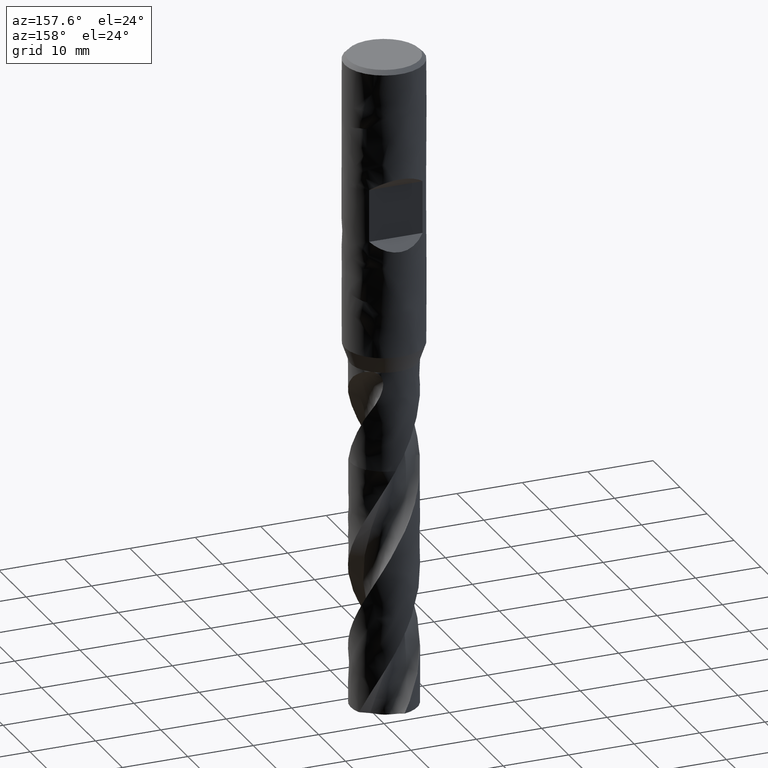
[diagram: clean part render]
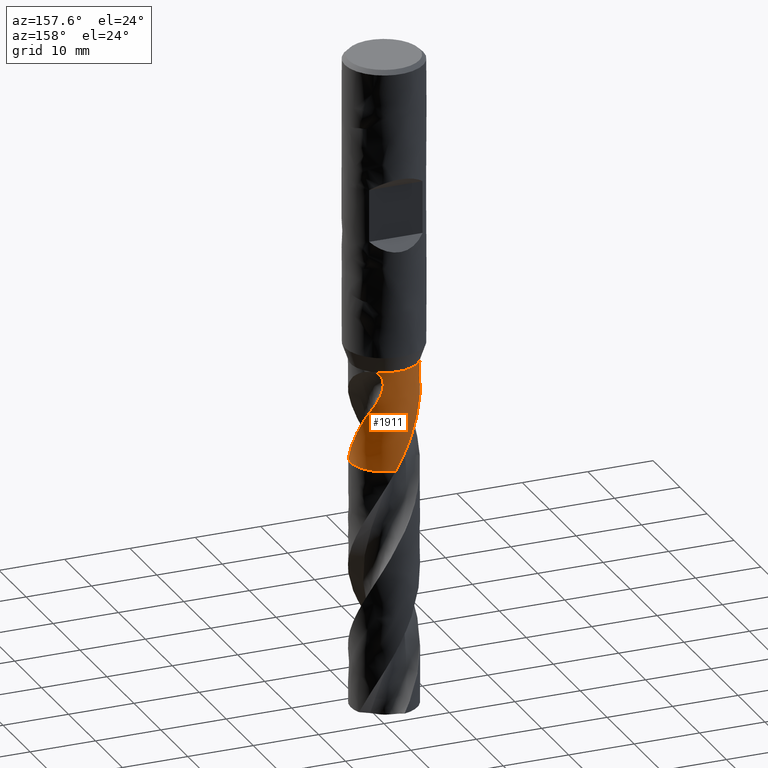
[diagram: same view with one face highlighted and labeled with its STEP entity id]
A machine part, auxiliary view. The second image highlights one B-rep face of the part: STEP entity #1911.
In plain terms, the highlighted face is a freeform B-spline surface patch.
Its self-contained STEP definition (entity closure, byte-faithful):
#119 = VERTEX_POINT('', #120);
#120 = CARTESIAN_POINT('', (3.22291237265761, 3.95257331850663, -47.));
#130 = EDGE_CURVE('', #131, #119, #133, .T.);
#131 = VERTEX_POINT('', #132);
#132 = CARTESIAN_POINT('', (-5.1, 3.19020491177885E-15, -47.));
#133 = CIRCLE('', #134, 5.1);
#134 = AXIS2_PLACEMENT_3D('', #135, #136, #137);
#135 = CARTESIAN_POINT('', (1.76221774462768E-31, 2.87791997799628E-15, -47.));
#136 = DIRECTION('', (3.74939945665464E-33, 6.12323399573677E-17, -1.));
#137 = DIRECTION('', (-1., 6.12323399573677E-17, 0.));
#720 = VERTEX_POINT('', #721);
#721 = CARTESIAN_POINT('', (4.93343042311955, -1.29277386276117, -62.3));
#791 = EDGE_CURVE('', #792, #720, #794, .T.);
#792 = VERTEX_POINT('', #793);
#793 = CARTESIAN_POINT('', (4.80703919696634, 1.70363557101546, -56.9525544792439));
#794 = B_SPLINE_CURVE_WITH_KNOTS('', 3, (#795, #796, #797, #798, #799, #800, #801, #802, #803, #804, #805, #806, #807, #808, #809, #810, #811, #812, #813, #814, #815, #816, #817, #818, #819, #820, #821, #822, #823, #824, #825, #826, #827, #828, #829, #830, #831, #832, #833, #834, #835, #836, #837, #838, #839, #840), .UNSPECIFIED., .F., .U., (4, 3, 3, 3, 3, 3, 3, 3, 3, 3, 3, 3, 3, 3, 3, 4), (0., 0.443139066501007, 0.886179293454697, 1.55039542453662, 1.99338693808374, 2.43634347516564, 2.73172156693805, 3.1746136386526, 3.46998339028006, 3.52836089720541, 3.58675071230853, 3.88254870842186, 4.54861569330321, 4.99239656060442, 5.9918421056947, 6.15313403050177), .UNSPECIFIED.);
#795 = CARTESIAN_POINT('', (4.80703919696634, 1.70363557101547, -56.9525544792439));
#796 = CARTESIAN_POINT('', (4.83058853404751, 1.63718791734018, -57.0823592363285));
#797 = CARTESIAN_POINT('', (4.85289231540216, 1.56987225002651, -57.21195445983));
#798 = CARTESIAN_POINT('', (4.87384573476975, 1.50187474633119, -57.341401092176));
#799 = CARTESIAN_POINT('', (4.8947944806011, 1.43389240907682, -57.4708188522165));
#800 = CARTESIAN_POINT('', (4.91439199590878, 1.36523952804474, -57.6001121577976));
#801 = CARTESIAN_POINT('', (4.93258852187919, 1.29598243577069, -57.7292699928549));
#802 = CARTESIAN_POINT('', (4.95986917348571, 1.19215060497609, -57.9229063993966));
#803 = CARTESIAN_POINT('', (4.98400968154557, 1.086932001913, -58.1162738297743));
#804 = CARTESIAN_POINT('', (5.00486953051123, 0.980449377867282, -58.3092677634978));
#805 = CARTESIAN_POINT('', (5.01878177327867, 0.909431983701248, -58.4379829072663));
#806 = CARTESIAN_POINT('', (5.03123818085599, 0.837829027628456, -58.5665421270792));
#807 = CARTESIAN_POINT('', (5.04218463421082, 0.765750686926778, -58.6949535633649));
#808 = CARTESIAN_POINT('', (5.0531302232867, 0.693678037181921, -58.8233548609052));
#809 = CARTESIAN_POINT('', (5.06256677639662, 0.621123757322518, -58.9516243589285));
#810 = CARTESIAN_POINT('', (5.07044917260038, 0.548220017945702, -59.0797808202813));
#811 = CARTESIAN_POINT('', (5.07570541549184, 0.499605389607537, -59.1652397938684));
#812 = CARTESIAN_POINT('', (5.08027115181097, 0.450832586015075, -59.2506542122613));
#813 = CARTESIAN_POINT('', (5.08413618294735, 0.401944365858658, -59.3360313157997));
#814 = CARTESIAN_POINT('', (5.08993143890884, 0.328641010902342, -59.4640463694422));
#815 = CARTESIAN_POINT('', (5.09415185696292, 0.255066236737017, -59.5919873434278));
#816 = CARTESIAN_POINT('', (5.09677491618471, 0.181343469003872, -59.719865777406));
#817 = CARTESIAN_POINT('', (5.09852426416434, 0.13217691808701, -59.8051493570745));
#818 = CARTESIAN_POINT('', (5.09956338631857, 0.0829422768829248, -59.8904112359464));
#819 = CARTESIAN_POINT('', (5.09988874011576, 0.0336873632160239, -59.9756611422986));
#820 = CARTESIAN_POINT('', (5.09995304373333, 0.0239525171532356, -59.9925101153944));
#821 = CARTESIAN_POINT('', (5.09998947770732, 0.01421684627977, -60.009358741374));
#822 = CARTESIAN_POINT('', (5.09999803164542, 0.00448076029440806, -60.0262071185575));
#823 = CARTESIAN_POINT('', (5.10000658738702, -0.0052573784246751, -60.0430590480137));
#824 = CARTESIAN_POINT('', (5.09998725132742, -0.0149959524247475, -60.0599107631839));
#825 = CARTESIAN_POINT('', (5.09994001951012, -0.0247345385874321, -60.0767623700514));
#826 = CARTESIAN_POINT('', (5.09970074701226, -0.0740694143155324, -60.1621312230592));
#827 = CARTESIAN_POINT('', (5.09874521205319, -0.123404993495527, -60.2475006606596));
#828 = CARTESIAN_POINT('', (5.09707554478765, -0.172687262783638, -60.3328839050541));
#829 = CARTESIAN_POINT('', (5.09331584980686, -0.283659253615741, -60.5251467361094));
#830 = CARTESIAN_POINT('', (5.08593539167541, -0.394404405823422, -60.7175036653396));
#831 = CARTESIAN_POINT('', (5.07496214653132, -0.504736774243321, -60.9098582094264));
#832 = CARTESIAN_POINT('', (5.06765099561454, -0.578247990472575, -61.0380183920233));
#833 = CARTESIAN_POINT('', (5.05874380243409, -0.651589514383292, -61.1661949081123));
#834 = CARTESIAN_POINT('', (5.04824584251598, -0.724716436628923, -61.2943535220364));
#835 = CARTESIAN_POINT('', (5.02460322958294, -0.88940667464892, -61.5829814580048));
#836 = CARTESIAN_POINT('', (4.99287136545445, -1.05305671109948, -61.8716550376412));
#837 = CARTESIAN_POINT('', (4.95323663654709, -1.21467972007753, -62.1602638114165));
#838 = CARTESIAN_POINT('', (4.94684032836795, -1.2407626681073, -62.2068399003961));
#839 = CARTESIAN_POINT('', (4.94023740435408, -1.26679734105125, -62.2534226414745));
#840 = CARTESIAN_POINT('', (4.93343042311955, -1.29277386276117, -62.3));
#843 = VERTEX_POINT('', #844);
#844 = CARTESIAN_POINT('', (4.19617784940607, 2.89863613724695, -54.5965113607337));
#853 = EDGE_CURVE('', #843, #119, #854, .T.);
#854 = B_SPLINE_CURVE_WITH_KNOTS('', 3, (#855, #856, #857, #858, #859, #860, #861, #862, #863, #864, #865, #866, #867, #868, #869, #870, #871, #872, #873, #874, #875, #876, #877, #878, #879, #880, #881, #882, #883, #884, #885, #886, #887, #888, #889, #890, #891, #892, #893, #894, #895, #896, #897, #898, #899, #900, #901, #902, #903, #904, #905, #906, #907, #908, #909, #910, #911, #912, #913, #914, #915, #916, #917, #918, #919, #920, #921, #922, #923, #924, #925, #926, #927, #928, #929, #930, #931, #932, #933, #934, #935, #936, #937, #938, #939, #940, #941, #942, #943, #944, #945, #946, #947, #948, #949, #950, #951, #952, #953, #954, #955, #956, #957, #958, #959, #960, #961, #962, #963, #964, #965, #966, #967, #968, #969, #970, #971, #972), .UNSPECIFIED., .F., .U., (4, 3, 3, 3, 3, 3, 3, 3, 3, 3, 3, 3, 3, 3, 3, 3, 3, 3, 3, 3, 3, 3, 3, 3, 3, 3, 3, 3, 3, 3, 3, 3, 3, 3, 3, 3, 3, 3, 3, 4), (0., 0.443532198141569, 0.886822433396548, 1.18222221398485, 1.47752481662624, 1.77273009185211, 2.06783667773548, 2.36284388303031, 2.6577468463242, 2.95254470801343, 3.24724414451389, 3.54185277534218, 3.83637633858191, 4.13082930770452, 4.42523107760683, 4.71960294963261, 5.01396866412095, 5.30836854945904, 5.60285307163827, 5.8974853059549, 6.19235652805128, 6.48759361311486, 6.68468109448964, 6.88197128978729, 7.01353342944595, 7.05248003690991, 7.25040766478958, 7.44877728812643, 7.58089943536582, 7.71316963900576, 7.84558146482724, 7.97811409886377, 8.11073025675229, 8.24337804470782, 8.37599769000954, 8.50853149715292, 8.64093325012499, 8.77317357900647, 8.90524028499375, 9.06802129261207), .UNSPECIFIED.);
#855 = CARTESIAN_POINT('', (4.19617784940607, 2.89863613724695, -54.5965113607337));
#856 = CARTESIAN_POINT('', (4.15016076406208, 2.96525225085067, -54.4728077264696));
#857 = CARTESIAN_POINT('', (4.1019675320993, 3.03161458364883, -54.349758635237));
#858 = CARTESIAN_POINT('', (4.05179745028316, 3.09724674862674, -54.2271484820023));
#859 = CARTESIAN_POINT('', (4.00165473806468, 3.1628431088803, -54.1046052170492));
#860 = CARTESIAN_POINT('', (3.94952704749423, 3.22772284283186, -53.9824735030366));
#861 = CARTESIAN_POINT('', (3.89569032331365, 3.29144298216457, -53.8605088490363));
#862 = CARTESIAN_POINT('', (3.85981460297122, 3.33390481344563, -53.7792340336537));
#863 = CARTESIAN_POINT('', (3.82317762824647, 3.37585714612295, -53.6980239908172));
#864 = CARTESIAN_POINT('', (3.78587978483378, 3.41717928338411, -53.6168019378376));
#865 = CARTESIAN_POINT('', (3.74859421132813, 3.45848782686246, -53.535606604554));
#866 = CARTESIAN_POINT('', (3.71064572174025, 3.49916929173933, -53.4543914610517));
#867 = CARTESIAN_POINT('', (3.67214964420157, 3.5391124580312, -53.3730779481299));
#868 = CARTESIAN_POINT('', (3.6336662544066, 3.57904245964011, -53.2917912349517));
#869 = CARTESIAN_POINT('', (3.59463225728636, 3.61823826526386, -53.210399053646));
#870 = CARTESIAN_POINT('', (3.55517085468645, 3.65660500929327, -53.1288288586276));
#871 = CARTESIAN_POINT('', (3.51572264433005, 3.69495892703177, -53.0472859331385));
#872 = CARTESIAN_POINT('', (3.47584362255605, 3.73248801097796, -52.965557554887));
#873 = CARTESIAN_POINT('', (3.43566503335873, 3.76911206765684, -52.883577115476));
#874 = CARTESIAN_POINT('', (3.39549997477046, 3.805723790757, -52.8016242839352));
#875 = CARTESIAN_POINT('', (3.35503127205338, 3.84143504148063, -52.7194115341766));
#876 = CARTESIAN_POINT('', (3.31439950208653, 3.87617800682176, -52.6368772841589));
#877 = CARTESIAN_POINT('', (3.27378208952155, 3.91090869559417, -52.5543721979556));
#878 = CARTESIAN_POINT('', (3.23299833309735, 3.94467461004692, -52.4715356314498));
#879 = CARTESIAN_POINT('', (3.19220503569314, 3.97741461380321, -52.3883065305509));
#880 = CARTESIAN_POINT('', (3.15142627676954, 4.01014294922328, -52.3051070919924));
#881 = CARTESIAN_POINT('', (3.11063280768471, 4.04185032787025, -52.2215050583043));
#882 = CARTESIAN_POINT('', (3.06998991653954, 4.07248841770551, -52.1374475747244));
#883 = CARTESIAN_POINT('', (3.02936059497799, 4.103116278295, -52.0534181557094));
#884 = CARTESIAN_POINT('', (2.98887583071637, 4.132680067437, -51.9689216698622));
#885 = CARTESIAN_POINT('', (2.94871123825136, 4.16114191459629, -51.8839129665239));
#886 = CARTESIAN_POINT('', (2.90855902169335, 4.18959499181291, -51.7989304568986));
#887 = CARTESIAN_POINT('', (2.86871961323999, 4.21695187834167, -51.7134223772399));
#888 = CARTESIAN_POINT('', (2.82938312856933, 4.2431817203329, -51.6273500738973));
#889 = CARTESIAN_POINT('', (2.79005800222135, 4.26940398851544, -51.5413026237413));
#890 = CARTESIAN_POINT('', (2.75122875812129, 4.29450438562926, -51.45467410076));
#891 = CARTESIAN_POINT('', (2.71310027698674, 4.31845885554263, -51.3674351250277));
#892 = CARTESIAN_POINT('', (2.67498093483731, 4.34240758382828, -51.2802170595358));
#893 = CARTESIAN_POINT('', (2.63755312210673, 4.3652165834985, -51.1923690644053));
#894 = CARTESIAN_POINT('', (2.60103595530588, 4.38686812648913, -51.1038742962237));
#895 = CARTESIAN_POINT('', (2.56452513807751, 4.40851590472872, -51.0153949154335));
#896 = CARTESIAN_POINT('', (2.52891441207125, 4.42901274141226, -50.9262450415722));
#897 = CARTESIAN_POINT('', (2.49444260508882, 4.44834307241676, -50.8364213268359));
#898 = CARTESIAN_POINT('', (2.45997429887959, 4.46767144033574, -50.746606734118));
#899 = CARTESIAN_POINT('', (2.42663273584039, 4.48584025013215, -50.6560890747958));
#900 = CARTESIAN_POINT('', (2.39468679021228, 4.50282968551819, -50.5648798282929));
#901 = CARTESIAN_POINT('', (2.362741512815, 4.51981876552691, -50.4736724896636));
#902 = CARTESIAN_POINT('', (2.33217871290127, 4.53563560949077, -50.3817367911142));
#903 = CARTESIAN_POINT('', (2.30329640089763, 4.55025556310984, -50.2891086246805));
#904 = CARTESIAN_POINT('', (2.27441073614911, 4.56487721385671, -50.1964697056931));
#905 = CARTESIAN_POINT('', (2.24719081688986, 4.57830953952216, -50.1030916537174));
#906 = CARTESIAN_POINT('', (2.22197501913325, 4.59051489643023, -50.0090420050422));
#907 = CARTESIAN_POINT('', (2.19675197210252, 4.6027237622488, -49.9149653180917));
#908 = CARTESIAN_POINT('', (2.17351737161636, 4.61371338956184, -49.8201566113873));
#909 = CARTESIAN_POINT('', (2.1526665338693, 4.62342154621003, -49.7247277069955));
#910 = CARTESIAN_POINT('', (2.13180523743401, 4.63313457242677, -49.6292509358861));
#911 = CARTESIAN_POINT('', (2.11331266000706, 4.64157352039294, -49.533074122998));
#912 = CARTESIAN_POINT('', (2.09765334354181, 4.64863963437992, -49.4363776585865));
#913 = CARTESIAN_POINT('', (2.08198132518981, 4.65571147996954, -49.3396027598741));
#914 = CARTESIAN_POINT('', (2.06912907750636, 4.66141739788569, -49.2422006505282));
#915 = CARTESIAN_POINT('', (2.05965295734241, 4.66560067893842, -49.1444575817901));
#916 = CARTESIAN_POINT('', (2.05016507963422, 4.66978915041837, -49.0465932378428));
#917 = CARTESIAN_POINT('', (2.04404705678811, 4.67245938908587, -48.9482388945379));
#918 = CARTESIAN_POINT('', (2.04197501607639, 4.67336474434853, -48.8498525138131));
#919 = CARTESIAN_POINT('', (2.04059181150678, 4.67396912028061, -48.7841740304531));
#920 = CARTESIAN_POINT('', (2.04101239140385, 4.67378600219045, -48.7184129450177));
#921 = CARTESIAN_POINT('', (2.04346678501193, 4.67271264883184, -48.652771756986));
#922 = CARTESIAN_POINT('', (2.04592370308149, 4.67163819147784, -48.5870630538456));
#923 = CARTESIAN_POINT('', (2.0504221595646, 4.66967065526375, -48.5213969420141));
#924 = CARTESIAN_POINT('', (2.05721200542127, 4.66667748668693, -48.4560535145824));
#925 = CARTESIAN_POINT('', (2.06173978566654, 4.66468150476938, -48.4124795239309));
#926 = CARTESIAN_POINT('', (2.06729032169234, 4.66222733314446, -48.3690155263398));
#927 = CARTESIAN_POINT('', (2.07394004794626, 4.65926739708359, -48.3257697482993));
#928 = CARTESIAN_POINT('', (2.07590857991774, 4.65839116119855, -48.3129676127747));
#929 = CARTESIAN_POINT('', (2.0779736944071, 4.6574704444607, -48.3001828950263));
#930 = CARTESIAN_POINT('', (2.08013736275593, 4.6565038979976, -48.2874188083512));
#931 = CARTESIAN_POINT('', (2.09113317912321, 4.65159188483051, -48.2225514023776));
#932 = CARTESIAN_POINT('', (2.10469278641488, 4.64549160263118, -48.1581269153475));
#933 = CARTESIAN_POINT('', (2.12106109029655, 4.63800602104288, -48.0946536067446));
#934 = CARTESIAN_POINT('', (2.13746594650815, 4.63050372327861, -48.0310385548472));
#935 = CARTESIAN_POINT('', (2.15673815367339, 4.62158954963532, -47.9682197450599));
#936 = CARTESIAN_POINT('', (2.17905795747015, 4.61104179312941, -47.9068776730527));
#937 = CARTESIAN_POINT('', (2.19392384446426, 4.60401656308321, -47.8660213860195));
#938 = CARTESIAN_POINT('', (2.21016544394738, 4.59625424491214, -47.8257525198393));
#939 = CARTESIAN_POINT('', (2.22780146510965, 4.58769011944572, -47.7863163542547));
#940 = CARTESIAN_POINT('', (2.24545724924026, 4.5791163969994, -47.7468359964066));
#941 = CARTESIAN_POINT('', (2.2645415813975, 4.56972390975703, -47.7081241372569));
#942 = CARTESIAN_POINT('', (2.28502956114323, 4.559456097464, -47.6704578552222));
#943 = CARTESIAN_POINT('', (2.30553947744237, 4.5491772913875, -47.6327512437642));
#944 = CARTESIAN_POINT('', (2.32749734395815, 4.53800031178764, -47.5960196768848));
#945 = CARTESIAN_POINT('', (2.35082027702036, 4.52588599338847, -47.5605600780194));
#946 = CARTESIAN_POINT('', (2.37416448916316, 4.51376062228179, -47.5250681269768));
#947 = CARTESIAN_POINT('', (2.39892869718904, 4.50066848652132, -47.490773358491));
#948 = CARTESIAN_POINT('', (2.42496201570641, 4.48659773351491, -47.4579718998244));
#949 = CARTESIAN_POINT('', (2.45101174077195, 4.47251811293033, -47.4251497692365));
#950 = CARTESIAN_POINT('', (2.47839530516282, 4.45742387435999, -47.3937449330498));
#951 = CARTESIAN_POINT('', (2.50689334353303, 4.44133828526378, -47.3640257173703));
#952 = CARTESIAN_POINT('', (2.53539817892463, 4.42524885961953, -47.3342994134085));
#953 = CARTESIAN_POINT('', (2.56508980765824, 4.40812638467242, -47.3061850694364));
#954 = CARTESIAN_POINT('', (2.59569263240427, 4.39003186299168, -47.2798962161291));
#955 = CARTESIAN_POINT('', (2.62628896443213, 4.37194118025819, -47.2536129402847));
#956 = CARTESIAN_POINT('', (2.65787313221217, 4.35283271137182, -47.2290874262255));
#957 = CARTESIAN_POINT('', (2.6901366216378, 4.33280105208204, -47.2064595937924));
#958 = CARTESIAN_POINT('', (2.7223792284973, 4.31278235829776, -47.1838464072397));
#959 = CARTESIAN_POINT('', (2.75537839340799, 4.29179279065936, -47.1630720582251));
#960 = CARTESIAN_POINT('', (2.78882053911412, 4.26995081946095, -47.1441977055547));
#961 = CARTESIAN_POINT('', (2.82222936370065, 4.24813061118831, -47.1253421589312));
#962 = CARTESIAN_POINT('', (2.85615548742294, 4.22541048565397, -47.1083384587196));
#963 = CARTESIAN_POINT('', (2.89030478361378, 4.20192078195434, -47.0931772556815));
#964 = CARTESIAN_POINT('', (2.92441244501536, 4.17845971687899, -47.0780345371678));
#965 = CARTESIAN_POINT('', (2.95881191566219, 4.1541835129525, -47.0646972809633));
#966 = CARTESIAN_POINT('', (2.99324459871655, 4.12922350718083, -47.0531022598638));
#967 = CARTESIAN_POINT('', (3.02763207391232, 4.10429627226262, -47.0415224622678));
#968 = CARTESIAN_POINT('', (3.06211400623508, 4.07864288158598, -47.0316581652003));
#969 = CARTESIAN_POINT('', (3.09647415094258, 4.05238791733285, -47.0234110741303));
#970 = CARTESIAN_POINT('', (3.13882531685972, 4.02002692593718, -47.0132459853272));
#971 = CARTESIAN_POINT('', (3.18107770981471, 3.98668513418153, -47.0055162546359));
#972 = CARTESIAN_POINT('', (3.22291237265762, 3.95257331850664, -47.));
#1135 = EDGE_CURVE('', #843, #792, #1136, .T.);
#1136 = B_SPLINE_CURVE_WITH_KNOTS('', 3, (#1137, #1138, #1139, #1140, #1141, #1142, #1143, #1144, #1145, #1146, #1147, #1148, #1149, #1150, #1151, #1152, #1153, #1154, #1155, #1156, #1157, #1158, #1159, #1160, #1161, #1162, #1163, #1164, #1165, #1166, #1167), .UNSPECIFIED., .F., .U., (4, 3, 3, 3, 3, 3, 3, 3, 3, 3, 4), (0., 0.443268106663958, 0.886719305097826, 1.0837794283073, 1.28082702695642, 1.477837002054, 1.67482510877598, 1.87180797589731, 2.06880245364273, 2.20015603731141, 2.71453260964904), .UNSPECIFIED.);
#1137 = CARTESIAN_POINT('', (4.19617784940607, 2.89863613724695, -54.5965113607337));
#1138 = CARTESIAN_POINT('', (4.24216753489022, 2.83205968874072, -54.7201413383936));
#1139 = CARTESIAN_POINT('', (4.28581151591648, 2.76548862473349, -54.8446710855814));
#1140 = CARTESIAN_POINT('', (4.32717335825722, 2.69917963974036, -54.9700671084457));
#1141 = CARTESIAN_POINT('', (4.36855228509561, 2.63284326583916, -55.0955149261029));
#1142 = CARTESIAN_POINT('', (4.40765903628229, 2.56674822950081, -55.2218640425592));
#1143 = CARTESIAN_POINT('', (4.44453844180416, 2.50121531246814, -55.3491245284814));
#1144 = CARTESIAN_POINT('', (4.46092685212236, 2.47209390125008, -55.4056763364911));
#1145 = CARTESIAN_POINT('', (4.47687666279582, 2.4430819460819, -55.4624137909944));
#1146 = CARTESIAN_POINT('', (4.49239044268288, 2.41421376652763, -55.5193408883743));
#1147 = CARTESIAN_POINT('', (4.50790323655984, 2.38534742174973, -55.5762643676357));
#1148 = CARTESIAN_POINT('', (4.52297952368454, 2.35662652517837, -55.6333824389505));
#1149 = CARTESIAN_POINT('', (4.53764626944787, 2.32803916061691, -55.6906698222218));
#1150 = CARTESIAN_POINT('', (4.55231021479613, 2.29945725442282, -55.7479462672486));
#1151 = CARTESIAN_POINT('', (4.56656559008602, 2.2710075185478, -55.8053947339262));
#1152 = CARTESIAN_POINT('', (4.58044649463367, 2.24265688632883, -55.8629804088072));
#1153 = CARTESIAN_POINT('', (4.59432585838202, 2.21430940106865, -55.9205596915998));
#1154 = CARTESIAN_POINT('', (4.60783149064677, 2.18605994405722, -55.9782783668753));
#1155 = CARTESIAN_POINT('', (4.62100318440099, 2.15785300003404, -56.0360924244916));
#1156 = CARTESIAN_POINT('', (4.63417452780708, 2.12964680627505, -56.0939049443371));
#1157 = CARTESIAN_POINT('', (4.6470124848039, 2.10148226357694, -56.1518144645778));
#1158 = CARTESIAN_POINT('', (4.65956049441908, 2.07328145673689, -56.2097680930461));
#1159 = CARTESIAN_POINT('', (4.67210924364286, 2.0450789876763, -56.2677251374348));
#1160 = CARTESIAN_POINT('', (4.68436846624197, 2.0168394980124, -56.3257274896879));
#1161 = CARTESIAN_POINT('', (4.69638259921569, 1.98846435265612, -56.3837135319512));
#1162 = CARTESIAN_POINT('', (4.70439348073293, 1.96954414193588, -56.4223779378839));
#1163 = CARTESIAN_POINT('', (4.71229606242059, 1.95056160035393, -56.4610345150258));
#1164 = CARTESIAN_POINT('', (4.72010121935706, 1.931487633671, -56.4996654379075));
#1165 = CARTESIAN_POINT('', (4.75066597259338, 1.85679456988684, -56.6509429374862));
#1166 = CARTESIAN_POINT('', (4.77970414978967, 1.78076512000163, -56.8018827577243));
#1167 = CARTESIAN_POINT('', (4.80703919696634, 1.70363557101546, -56.9525544792439));
#1187 = VERTEX_POINT('', #1188);
#1188 = CARTESIAN_POINT('', (-5.1, 3.33685442443719E-15, -49.3949682922526));
#1238 = EDGE_CURVE('', #131, #1187, #1239, .T.);
#1239 = LINE('', #1240, #1241);
#1240 = CARTESIAN_POINT('', (-5.1, 3.19020491177886E-15, -47.));
#1241 = VECTOR('', #1242, 2.39496829225265);
#1242 = DIRECTION('', (8.88178419700125E-16, 1.4664951265833E-16, -2.39496829225265));
#1581 = EDGE_CURVE('', #1582, #1187, #1584, .T.);
#1582 = VERTEX_POINT('', #1583);
#1583 = CARTESIAN_POINT('', (-5.06945732025133, 0.557317215013355, -50.0102829780598));
#1584 = B_SPLINE_CURVE_WITH_KNOTS('', 3, (#1585, #1586, #1587, #1588, #1589, #1590, #1591), .UNSPECIFIED., .F., .U., (4, 3, 4), (0., 0.446612196118988, 0.831022434797814), .UNSPECIFIED.);
#1585 = CARTESIAN_POINT('', (-5.06945732025133, 0.557317215013356, -50.0102829780598));
#1586 = CARTESIAN_POINT('', (-5.07995498561146, 0.461828568562378, -49.8965542997109));
#1587 = CARTESIAN_POINT('', (-5.08799407548024, 0.363846778124415, -49.7846179031005));
#1588 = CARTESIAN_POINT('', (-5.09318109356781, 0.263640566156711, -49.6746437934907));
#1589 = CARTESIAN_POINT('', (-5.09764568920223, 0.177390584193962, -49.5799863387885));
#1590 = CARTESIAN_POINT('', (-5.1, 0.0894434745622384, -49.4867228049029));
#1591 = CARTESIAN_POINT('', (-5.1, 2.53194273158395E-15, -49.3949682922526));
#1713 = VERTEX_POINT('', #1714);
#1714 = CARTESIAN_POINT('', (0.285090665278668, 5.09202546267897, -62.3));
#1721 = EDGE_CURVE('', #1582, #1713, #1722, .T.);
#1722 = B_SPLINE_CURVE_WITH_KNOTS('', 3, (#1723, #1724, #1725, #1726, #1727, #1728, #1729, #1730, #1731, #1732, #1733, #1734, #1735, #1736, #1737, #1738, #1739, #1740, #1741, #1742, #1743, #1744, #1745, #1746, #1747, #1748, #1749, #1750, #1751, #1752, #1753, #1754, #1755, #1756, #1757, #1758, #1759, #1760, #1761, #1762, #1763, #1764, #1765, #1766, #1767, #1768, #1769, #1770, #1771, #1772, #1773, #1774, #1775, #1776, #1777, #1778, #1779, #1780, #1781, #1782, #1783, #1784, #1785, #1786, #1787, #1788, #1789, #1790, #1791, #1792, #1793, #1794, #1795, #1796, #1797, #1798, #1799, #1800, #1801, #1802, #1803, #1804, #1805, #1806, #1807, #1808, #1809, #1810, #1811, #1812, #1813, #1814, #1815, #1816, #1817, #1818, #1819, #1820, #1821, #1822, #1823, #1824, #1825, #1826, #1827, #1828, #1829, #1830, #1831, #1832, #1833, #1834, #1835, #1836, #1837), .UNSPECIFIED., .F., .U., (4, 3, 3, 3, 3, 3, 3, 3, 3, 3, 3, 3, 3, 3, 3, 3, 3, 3, 3, 3, 3, 3, 3, 3, 3, 3, 3, 3, 3, 3, 3, 3, 3, 3, 3, 3, 3, 3, 4), (0., 0.442723091230115, 0.885454031660841, 1.32820175740714, 1.77099249046283, 2.21383460792168, 2.65673592860235, 3.09971075968441, 3.54275991827071, 3.98590053750511, 4.42913895588307, 4.72467759712847, 5.38982691887082, 5.68539390418485, 6.12886177247109, 6.57246121839159, 6.76954557833824, 6.9666119384586, 7.16364118348257, 7.36064963013309, 7.55765399755352, 7.75467095889447, 7.88603480274425, 8.32933969223357, 8.77256193153915, 9.06804391253416, 9.7324814738155, 10.0279490624198, 10.6923496010221, 11.1353955970892, 11.5784173266038, 12.0214428976556, 12.2184223901309, 12.8825673679075, 13.3254979579772, 13.7684076897123, 13.9653648748789, 14.0237532718852, 14.5493485276267), .UNSPECIFIED.);
#1723 = CARTESIAN_POINT('', (-5.06945732025133, 0.557317215013355, -50.0102829780598));
#1724 = CARTESIAN_POINT('', (-5.05905106869948, 0.65197434507277, -50.1230213055789));
#1725 = CARTESIAN_POINT('', (-5.04605662270398, 0.745755884885099, -50.2362885892285));
#1726 = CARTESIAN_POINT('', (-5.03059916094995, 0.838493936680749, -50.3500379341037));
#1727 = CARTESIAN_POINT('', (-5.01514142514489, 0.931233632663448, -50.4637892956829));
#1728 = CARTESIAN_POINT('', (-4.99721518506701, 1.02296150424617, -50.5780611162845));
#1729 = CARTESIAN_POINT('', (-4.97695597861201, 1.11351209556012, -50.6928179027278));
#1730 = CARTESIAN_POINT('', (-4.95669600406707, 1.20406611993037, -50.8075790399601));
#1731 = CARTESIAN_POINT('', (-4.93409770029001, 1.29346747615196, -50.9228661561327));
#1732 = CARTESIAN_POINT('', (-4.90930172586398, 1.38157756366746, -51.0386348420859));
#1733 = CARTESIAN_POINT('', (-4.88450334282446, 1.46969620995712, -51.1544147734943));
#1734 = CARTESIAN_POINT('', (-4.85749877230443, 1.55655213939361, -51.2707108146757));
#1735 = CARTESIAN_POINT('', (-4.82843470009349, 1.64201654892189, -51.3874839389497));
#1736 = CARTESIAN_POINT('', (-4.79936725509291, 1.72749087631283, -51.5042706143594));
#1737 = CARTESIAN_POINT('', (-4.76823103282584, 1.8115987545642, -51.6215686152231));
#1738 = CARTESIAN_POINT('', (-4.73518303213149, 1.89421267343832, -51.7393509339871));
#1739 = CARTESIAN_POINT('', (-4.70213061327537, 1.97683763690366, -51.8571489989786));
#1740 = CARTESIAN_POINT('', (-4.66715697297318, 2.05799163091877, -51.9754643526244));
#1741 = CARTESIAN_POINT('', (-4.63041700969111, 2.13757767493105, -52.0942581563018));
#1742 = CARTESIAN_POINT('', (-4.59367094850569, 2.21717692821086, -52.2130716767418));
#1743 = CARTESIAN_POINT('', (-4.55514795111847, 2.29522919158049, -52.3323952560727));
#1744 = CARTESIAN_POINT('', (-4.51501010579439, 2.37164157169144, -52.4521995477872));
#1745 = CARTESIAN_POINT('', (-4.47486552567263, 2.44806677316628, -52.5720239416686));
#1746 = CARTESIAN_POINT('', (-4.43309690273683, 2.52286806232685, -52.6923619203487));
#1747 = CARTESIAN_POINT('', (-4.38987155371394, 2.59596374048135, -52.8131877252898));
#1748 = CARTESIAN_POINT('', (-4.34663728148611, 2.66907450810835, -52.93403847285));
#1749 = CARTESIAN_POINT('', (-4.30193278478641, 2.74050145900657, -53.0554024192086));
#1750 = CARTESIAN_POINT('', (-4.25591726178382, 2.81019007557346, -53.1772439482031));
#1751 = CARTESIAN_POINT('', (-4.20989158336206, 2.87989407210491, -53.2991123670757));
#1752 = CARTESIAN_POINT('', (-4.16254338252502, 2.94787519849867, -53.4214860626505));
#1753 = CARTESIAN_POINT('', (-4.11403993718859, 3.01407952702294, -53.5443409542922));
#1754 = CARTESIAN_POINT('', (-4.08169923354899, 3.05822267095037, -53.6262570658941));
#1755 = CARTESIAN_POINT('', (-4.04884168118742, 3.10158068104913, -53.7083977300503));
#1756 = CARTESIAN_POINT('', (-4.01551838460057, 3.14413932626004, -53.7907573514074));
#1757 = CARTESIAN_POINT('', (-3.94051983947105, 3.23992326123728, -53.9761187175346));
#1758 = CARTESIAN_POINT('', (-3.86313591527278, 3.3316860668751, -54.1626505552432));
#1759 = CARTESIAN_POINT('', (-3.78394511490798, 3.4193214776274, -54.3502859248931));
#1760 = CARTESIAN_POINT('', (-3.74875574409555, 3.45826331116181, -54.4336639254907));
#1761 = CARTESIAN_POINT('', (-3.71320481946032, 3.49639654319113, -54.5172718395303));
#1762 = CARTESIAN_POINT('', (-3.67734293435877, 3.53371602468588, -54.6011039974339));
#1763 = CARTESIAN_POINT('', (-3.6235358634445, 3.58971006910339, -54.7268855299005));
#1764 = CARTESIAN_POINT('', (-3.56901524754532, 3.64388682052785, -54.853185769073));
#1765 = CARTESIAN_POINT('', (-3.51390969687785, 3.69627361570969, -54.9799553623376));
#1766 = CARTESIAN_POINT('', (-3.4587877963043, 3.74867595413845, -55.1067625683457));
#1767 = CARTESIAN_POINT('', (-3.40306917952595, 3.79929687697903, -55.2340607681058));
#1768 = CARTESIAN_POINT('', (-3.3469254938649, 3.84812808239503, -55.3618414255983));
#1769 = CARTESIAN_POINT('', (-3.32198172431038, 3.86982303028854, -55.4186123916739));
#1770 = CARTESIAN_POINT('', (-3.29695346860646, 3.89116537067843, -55.4754822266849));
#1771 = CARTESIAN_POINT('', (-3.27185998344704, 3.91215186933202, -55.532453174278));
#1772 = CARTESIAN_POINT('', (-3.24676879008983, 3.93313645127678, -55.5894189186822));
#1773 = CARTESIAN_POINT('', (-3.22161275768389, 3.95376505613128, -55.6464884225908));
#1774 = CARTESIAN_POINT('', (-3.19640055300199, 3.97404372205045, -55.7036560457933));
#1775 = CARTESIAN_POINT('', (-3.17119309673787, 3.99431856872497, -55.7608129021564));
#1776 = CARTESIAN_POINT('', (-3.14592883435726, 4.01424427953859, -55.8180696144878));
#1777 = CARTESIAN_POINT('', (-3.12060159667994, 4.03383758656675, -55.8754109158302));
#1778 = CARTESIAN_POINT('', (-3.0952770325415, 4.05342882532877, -55.9327461642346));
#1779 = CARTESIAN_POINT('', (-3.06988887811405, 4.07268836068885, -55.9901675716933));
#1780 = CARTESIAN_POINT('', (-3.04441456776311, 4.09164269451668, -56.0476503833497));
#1781 = CARTESIAN_POINT('', (-3.01894078487978, 4.11059663587867, -56.1051320047747));
#1782 = CARTESIAN_POINT('', (-2.99338025854695, 4.12924596703885, -56.1626763949294));
#1783 = CARTESIAN_POINT('', (-2.96769323449336, 4.1476254490904, -56.2202495982794));
#1784 = CARTESIAN_POINT('', (-2.94200456834247, 4.16600610608918, -56.2778264821181));
#1785 = CARTESIAN_POINT('', (-2.91618881190853, 4.18411742149626, -56.3354333754451));
#1786 = CARTESIAN_POINT('', (-2.89018910898084, 4.20200034677873, -56.3930273864524));
#1787 = CARTESIAN_POINT('', (-2.8728534395426, 4.21392403998968, -56.4314290073948));
#1788 = CARTESIAN_POINT('', (-2.8554339730146, 4.22574743750472, -56.4698241797254));
#1789 = CARTESIAN_POINT('', (-2.83791484883936, 4.23748030210609, -56.5082013156535));
#1790 = CARTESIAN_POINT('', (-2.77879421732572, 4.27707442551993, -56.6377101021121));
#1791 = CARTESIAN_POINT('', (-2.71857142440125, 4.31561258895052, -56.7670476772218));
#1792 = CARTESIAN_POINT('', (-2.65736344991669, 4.3529782327789, -56.8962485362369));
#1793 = CARTESIAN_POINT('', (-2.5961668871049, 4.39033691012123, -57.0254253069214));
#1794 = CARTESIAN_POINT('', (-2.53397907228954, 4.42652729896219, -57.1544794633334));
#1795 = CARTESIAN_POINT('', (-2.47093406227411, 4.46144425717655, -57.2834502386991));
#1796 = CARTESIAN_POINT('', (-2.42890398616512, 4.48472226777382, -57.3694308976463));
#1797 = CARTESIAN_POINT('', (-2.38649435671983, 4.5074341459111, -57.4553820063856));
#1798 = CARTESIAN_POINT('', (-2.3437348595785, 4.52955923992573, -57.5413073949919));
#1799 = CARTESIAN_POINT('', (-2.24758342622703, 4.57931098269088, -57.734524103048));
#1800 = CARTESIAN_POINT('', (-2.14962799946056, 4.62611525048578, -57.9276337659219));
#1801 = CARTESIAN_POINT('', (-2.04998160899484, 4.66985817801601, -58.1205331787617));
#1802 = CARTESIAN_POINT('', (-2.0056700281636, 4.68931014471538, -58.2063132846382));
#1803 = CARTESIAN_POINT('', (-1.96101998232702, 4.70815850186356, -58.2920582712377));
#1804 = CARTESIAN_POINT('', (-1.91603852689702, 4.72639358956132, -58.3777569994223));
#1805 = CARTESIAN_POINT('', (-1.81489138126261, 4.76739775568689, -58.570462674628));
#1806 = CARTESIAN_POINT('', (-1.7120406971512, 4.80530754639987, -58.7629655437887));
#1807 = CARTESIAN_POINT('', (-1.60780552560718, 4.8399340276317, -58.9552767493302));
#1808 = CARTESIAN_POINT('', (-1.5382977923668, 4.86302420136925, -59.0835167260665));
#1809 = CARTESIAN_POINT('', (-1.46816704285403, 4.88465757241477, -59.2116911572275));
#1810 = CARTESIAN_POINT('', (-1.39753402701243, 4.90478324121897, -59.3398157343588));
#1811 = CARTESIAN_POINT('', (-1.32690487988828, 4.92490780769835, -59.4679332938401));
#1812 = CARTESIAN_POINT('', (-1.25576067332747, 4.94352906292232, -59.596012962492));
#1813 = CARTESIAN_POINT('', (-1.18418868684968, 4.96061459437611, -59.7240485786833));
#1814 = CARTESIAN_POINT('', (-1.11261607975576, 4.97770027398223, -59.852085305099));
#1815 = CARTESIAN_POINT('', (-1.04060735789591, 4.99325155018585, -59.9800929314922));
#1816 = CARTESIAN_POINT('', (-0.968294360599836, 5.00723536806795, -60.108089982648));
#1817 = CARTESIAN_POINT('', (-0.936142316931257, 5.01345289935569, -60.1650004542381));
#1818 = CARTESIAN_POINT('', (-0.903929518406298, 5.01936085526988, -60.2219112969832));
#1819 = CARTESIAN_POINT('', (-0.871670332490335, 5.02495679896417, -60.2788256512552));
#1820 = CARTESIAN_POINT('', (-0.762903800279231, 5.04382433615689, -60.470720665696));
#1821 = CARTESIAN_POINT('', (-0.653594316228017, 5.05914745146209, -60.6626897282418));
#1822 = CARTESIAN_POINT('', (-0.543957867244048, 5.07090818677122, -60.8546568431739));
#1823 = CARTESIAN_POINT('', (-0.470839288219035, 5.07875163903607, -60.9826832686324));
#1824 = CARTESIAN_POINT('', (-0.397563469521106, 5.08501230496977, -61.1107267321243));
#1825 = CARTESIAN_POINT('', (-0.324180858265924, 5.08968631362818, -61.2387570330931));
#1826 = CARTESIAN_POINT('', (-0.250801702719364, 5.09436010217979, -61.3667813049031));
#1827 = CARTESIAN_POINT('', (-0.177307466005204, 5.09744745416204, -61.4948074117248));
#1828 = CARTESIAN_POINT('', (-0.103780288226624, 5.09894397417501, -61.6228233228312));
#1829 = CARTESIAN_POINT('', (-0.0710835445543195, 5.09960946049915, -61.6797506190757));
#1830 = CARTESIAN_POINT('', (-0.0383791103851026, 5.09996045510878, -61.7366780438249));
#1831 = CARTESIAN_POINT('', (-0.00567439416232754, 5.09999684325892, -61.7936046385695));
#1832 = CARTESIAN_POINT('', (0.00402099193479678, 5.10000763060722, -61.8104806545998));
#1833 = CARTESIAN_POINT('', (0.0137164449116845, 5.099990770624, -61.8273566725266));
#1834 = CARTESIAN_POINT('', (0.0234117700789663, 5.09994626334649, -61.8442326683194));
#1835 = CARTESIAN_POINT('', (0.11068624877799, 5.09954562186449, -61.9961454417367));
#1836 = CARTESIAN_POINT('', (0.197963268943636, 5.09690352300432, -62.1480805897574));
#1837 = CARTESIAN_POINT('', (0.285090665278668, 5.09202546267897, -62.3));
#1911 = ADVANCED_FACE('', (#1912), #1928, .T.);
#1912 = FACE_OUTER_BOUND('', #1913, .T.);
#1913 = EDGE_LOOP('', (#1914, #1921, #1922, #1923, #1924, #1925, #1926, #1927));
#1914 = ORIENTED_EDGE('', *, *, #1915, .F.);
#1915 = EDGE_CURVE('', #1713, #720, #1916, .T.);
#1916 = CIRCLE('', #1917, 5.1);
#1917 = AXIS2_PLACEMENT_3D('', #1918, #1919, #1920);
#1918 = CARTESIAN_POINT('', (2.33587586149584E-31, 3.81477477934401E-15, -62.3));
#1919 = DIRECTION('', (3.74939945665464E-33, 6.12323399573677E-17, -1.));
#1920 = DIRECTION('', (-1., 6.12323399573677E-17, 0.));
#1921 = ORIENTED_EDGE('', *, *, #1721, .F.);
#1922 = ORIENTED_EDGE('', *, *, #1581, .T.);
#1923 = ORIENTED_EDGE('', *, *, #1238, .F.);
#1924 = ORIENTED_EDGE('', *, *, #130, .T.);
#1925 = ORIENTED_EDGE('', *, *, #853, .F.);
#1926 = ORIENTED_EDGE('', *, *, #1135, .T.);
#1927 = ORIENTED_EDGE('', *, *, #791, .T.);
#1928 = (
   BOUNDED_SURFACE ()
   B_SPLINE_SURFACE (2, 1, ((#1929, #1930), (#1931, #1932), (#1933, #1934), (#1935, #1936), (#1937, #1938), (#1939, #1940), (#1941, #1942), (#1943, #1944), (#1945, #1946)), .UNSPECIFIED., .T., .F., .U.)
   B_SPLINE_SURFACE_WITH_KNOTS ((3, 2, 2, 2, 3), (2, 2), (0., 8.01106126665398, 16.022122533308, 24.0331837999619, 32.0442450666159), (0., 0.287898379024319), .UNSPECIFIED.)
   GEOMETRIC_REPRESENTATION_ITEM ()
   RATIONAL_B_SPLINE_SURFACE (((1., 1.), (0.707106781186548, 0.707106781186548), (1., 1.), (0.707106781186548, 0.707106781186548), (1., 1.), (0.707106781186548, 0.707106781186548), (1., 1.), (0.707106781186548, 0.707106781186548), (1., 1.)))
   REPRESENTATION_ITEM ('')
   SURFACE ()
);
#1929 = CARTESIAN_POINT('', (-5.1, 3.19020491177886E-15, -47.));
#1930 = CARTESIAN_POINT('', (-5.1, 4.12705971312658E-15, -62.3));
#1931 = CARTESIAN_POINT('', (-5.1, 5.1, -47.));
#1932 = CARTESIAN_POINT('', (-5.1, 5.1, -62.3));
#1933 = CARTESIAN_POINT('', (1.4791141972894E-31, 5.1, -47.));
#1934 = CARTESIAN_POINT('', (1.97215226305253E-31, 5.1, -62.3));
#1935 = CARTESIAN_POINT('', (5.1, 5.1, -47.));
#1936 = CARTESIAN_POINT('', (5.1, 5.1, -62.3));
#1937 = CARTESIAN_POINT('', (5.1, 3.19020491177885E-15, -47.));
#1938 = CARTESIAN_POINT('', (5.1, 4.12705971312658E-15, -62.3));
#1939 = CARTESIAN_POINT('', (5.1, -5.1, -47.));
#1940 = CARTESIAN_POINT('', (5.1, -5.1, -62.3));
#1941 = CARTESIAN_POINT('', (6.2456986756515E-16, -5.1, -47.));
#1942 = CARTESIAN_POINT('', (6.2456986756515E-16, -5.1, -62.3));
#1943 = CARTESIAN_POINT('', (-5.1, -5.1, -47.));
#1944 = CARTESIAN_POINT('', (-5.1, -5.1, -62.3));
#1945 = CARTESIAN_POINT('', (-5.1, 3.19020491177886E-15, -47.));
#1946 = CARTESIAN_POINT('', (-5.1, 4.12705971312658E-15, -62.3));